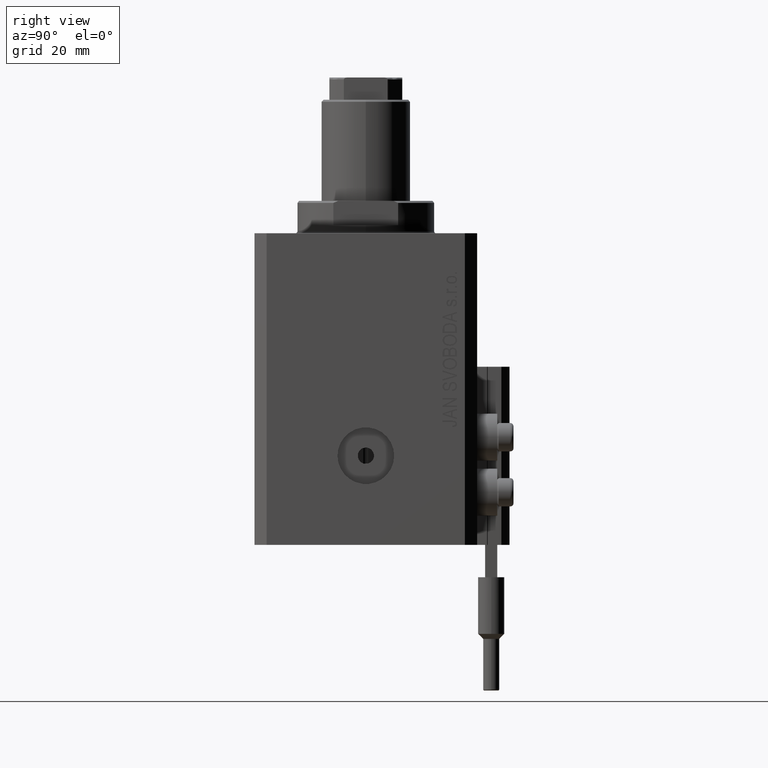
[diagram: clean part render]
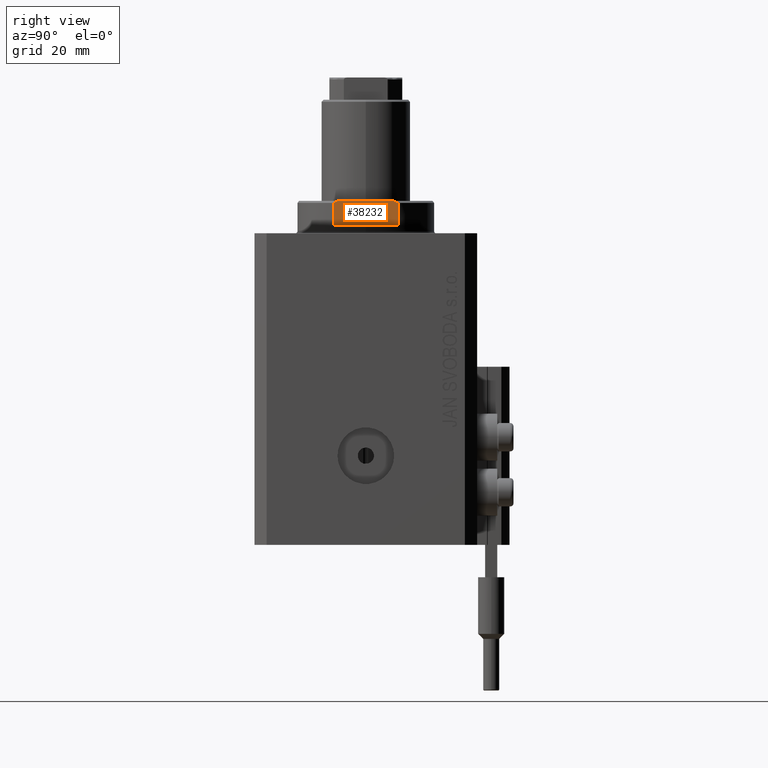
[diagram: same view with one face highlighted and labeled with its STEP entity id]
A machine part, right view. The second image highlights one B-rep face of the part: STEP entity #38232.
In plain terms, the highlighted planar face has unit normal (-1, 0, 0).
Its self-contained STEP definition (entity closure, byte-faithful):
#1061 = ORIENTED_EDGE ( 'NONE', *, *, #10014, .F. ) ;
#1119 = DIRECTION ( 'NONE',  ( 0.000000000000000000, 0.000000000000000000, -1.000000000000000000 ) ) ;
#1611 = CARTESIAN_POINT ( 'NONE',  ( -15.00000000000000000, 8.000000000000001776, -7.499999999999993783 ) ) ;
#2466 = VECTOR ( 'NONE', #24401, 1000.000000000000000 ) ;
#2934 = CARTESIAN_POINT ( 'NONE',  ( -15.00000000000000000, 7.253126193285940104, -7.842000017654660482 ) ) ;
#3766 = DIRECTION ( 'NONE',  ( -0.000000000000000000, -0.000000000000000000, 1.000000000000000000 ) ) ;
#4963 = VERTEX_POINT ( 'NONE', #41359 ) ;
#5420 = CARTESIAN_POINT ( 'NONE',  ( -14.99999999999999645, 8.000000000000003553, -2.000000000000000000 ) ) ;
#7482 = EDGE_CURVE ( 'NONE', #38882, #4963, #33290, .T. ) ;
#8076 = CARTESIAN_POINT ( 'NONE',  ( -14.99999999999999645, -8.000000000000003553, -2.000000000000000000 ) ) ;
#9960 = LINE ( 'NONE', #39768, #29032 ) ;
#10014 = EDGE_CURVE ( 'NONE', #41706, #29245, #45047, .T. ) ;
#11494 = EDGE_CURVE ( 'NONE', #29245, #22034, #46616, .T. ) ;
#13786 = CARTESIAN_POINT ( 'NONE',  ( -15.00000000000000000, -7.254193676168138261, -7.841555306644506729 ) ) ;
#14039 = ORIENTED_EDGE ( 'NONE', *, *, #41280, .F. ) ;
#15018 = ORIENTED_EDGE ( 'NONE', *, *, #11494, .F. ) ;
#15120 = EDGE_CURVE ( 'NONE', #41706, #40520, #28890, .T. ) ;
#15329 = FACE_OUTER_BOUND ( 'NONE', #48224, .T. ) ;
#17624 = DIRECTION ( 'NONE',  ( 0.000000000000000000, 0.000000000000000000, -1.000000000000000000 ) ) ;
#17865 = CARTESIAN_POINT ( 'NONE',  ( -14.99999999999999645, 6.873863542433781504, -8.000000000000000000 ) ) ;
#18927 = AXIS2_PLACEMENT_3D ( 'NONE', #37793, #42155, #1119 ) ;
#19369 = VECTOR ( 'NONE', #17624, 1000.000000000000000 ) ;
#19381 = VECTOR ( 'NONE', #3766, 1000.000000000000000 ) ;
#21108 = CARTESIAN_POINT ( 'NONE',  ( -15.00000000000000000, -7.629305121525813860, -7.674444648693732773 ) ) ;
#22034 = VERTEX_POINT ( 'NONE', #8076 ) ;
#24401 = DIRECTION ( 'NONE',  ( -0.000000000000000000, -1.000000000000000000, -0.000000000000000000 ) ) ;
#26246 = CARTESIAN_POINT ( 'NONE',  ( -15.00000000000000000, 8.000000000000001776, -8.000000000000000000 ) ) ;
#28792 = CARTESIAN_POINT ( 'NONE',  ( -15.00000000000000000, -42.42640687119285303, -2.000000000000000000 ) ) ;
#28890 = B_SPLINE_CURVE_WITH_KNOTS ( 'NONE', 3,
 ( #40083, #29585, #2934, #17865 ),
 .UNSPECIFIED., .F., .F.,
 ( 4, 4 ),
 ( 0.03336039268696971288, 0.03459498301323776781 ),
 .UNSPECIFIED. ) ;
#29032 = VECTOR ( 'NONE', #36121, 1000.000000000000000 ) ;
#29245 = VERTEX_POINT ( 'NONE', #5420 ) ;
#29585 = CARTESIAN_POINT ( 'NONE',  ( -15.00000000000000000, 7.628315461082484816, -7.674910371255299069 ) ) ;
#30651 = EDGE_CURVE ( 'NONE', #40520, #38882, #9960, .T. ) ;
#32272 = CARTESIAN_POINT ( 'NONE',  ( -15.00000000000000000, -8.000000000000001776, -8.000000000000000000 ) ) ;
#32751 = CARTESIAN_POINT ( 'NONE',  ( -14.99999999999999645, 6.873863542433781504, -8.000000000000000000 ) ) ;
#33290 = B_SPLINE_CURVE_WITH_KNOTS ( 'NONE', 3,
 ( #42847, #13786, #21108, #36481 ),
 .UNSPECIFIED., .F., .F.,
 ( 4, 4 ),
 ( 0.04875332532858994011, 0.04998905627745597186 ),
 .UNSPECIFIED. ) ;
#36121 = DIRECTION ( 'NONE',  ( -0.000000000000000000, -1.000000000000000000, -0.000000000000000000 ) ) ;
#36481 = CARTESIAN_POINT ( 'NONE',  ( -15.00000000000000000, -8.000000000000001776, -7.499999999999993783 ) ) ;
#37793 = CARTESIAN_POINT ( 'NONE',  ( -15.00000000000000000, -42.42640687119285303, -2.000000000000000000 ) ) ;
#38232 = ADVANCED_FACE ( 'NONE', ( #15329 ), #42409, .F. ) ;
#38882 = VERTEX_POINT ( 'NONE', #43932 ) ;
#39354 = LINE ( 'NONE', #32272, #19369 ) ;
#39768 = CARTESIAN_POINT ( 'NONE',  ( -15.00000000000000000, -42.42640687119285303, -8.000000000000000000 ) ) ;
#40083 = CARTESIAN_POINT ( 'NONE',  ( -15.00000000000000000, 8.000000000000001776, -7.499999999999993783 ) ) ;
#40520 = VERTEX_POINT ( 'NONE', #32751 ) ;
#41280 = EDGE_CURVE ( 'NONE', #22034, #4963, #39354, .T. ) ;
#41359 = CARTESIAN_POINT ( 'NONE',  ( -15.00000000000000000, -8.000000000000001776, -7.499999999999993783 ) ) ;
#41706 = VERTEX_POINT ( 'NONE', #1611 ) ;
#42155 = DIRECTION ( 'NONE',  ( 1.000000000000000000, 0.000000000000000000, 0.000000000000000000 ) ) ;
#42409 = PLANE ( 'NONE',  #18927 ) ;
#42728 = ORIENTED_EDGE ( 'NONE', *, *, #7482, .T. ) ;
#42847 = CARTESIAN_POINT ( 'NONE',  ( -15.00000000000000000, -6.873863542433783280, -8.000000000000000000 ) ) ;
#43932 = CARTESIAN_POINT ( 'NONE',  ( -15.00000000000000000, -6.873863542433783280, -8.000000000000000000 ) ) ;
#45047 = LINE ( 'NONE', #26246, #19381 ) ;
#45824 = ORIENTED_EDGE ( 'NONE', *, *, #15120, .T. ) ;
#46544 = ORIENTED_EDGE ( 'NONE', *, *, #30651, .T. ) ;
#46616 = LINE ( 'NONE', #28792, #2466 ) ;
#48224 = EDGE_LOOP ( 'NONE', ( #45824, #46544, #42728, #14039, #15018, #1061 ) ) ;